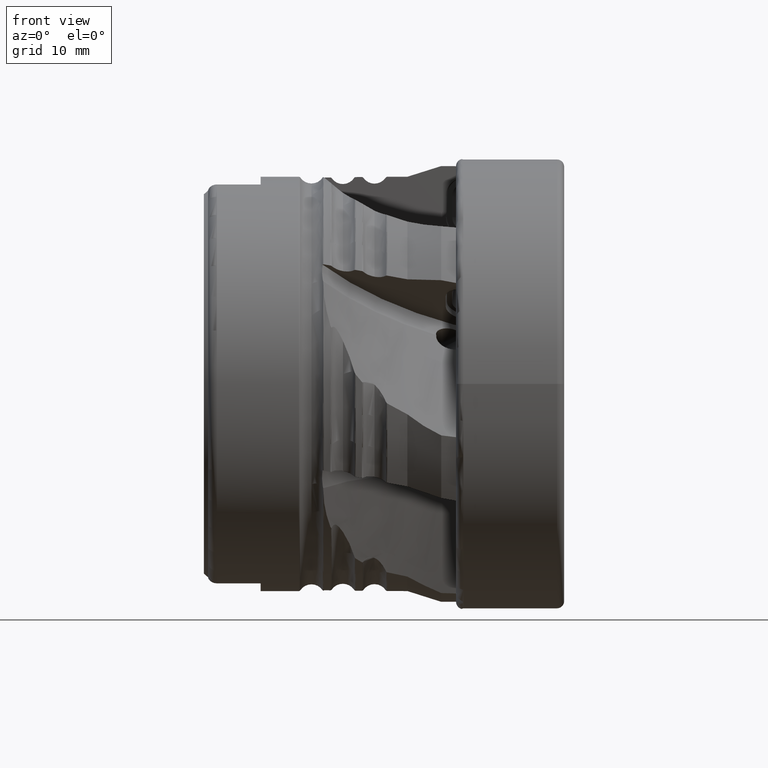
[diagram: clean part render]
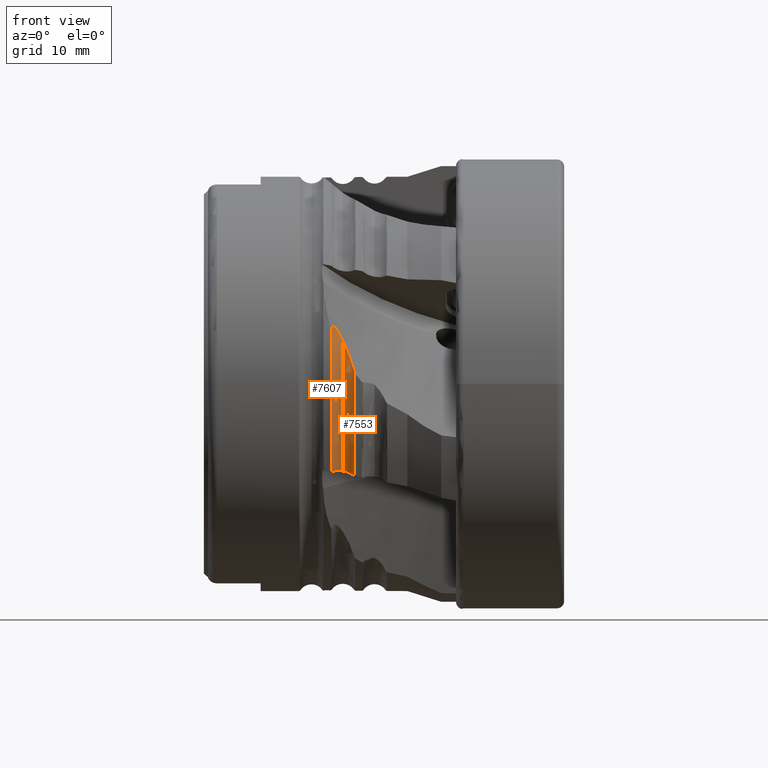
[diagram: same view with one multi-face feature highlighted, each face labeled with its STEP entity id]
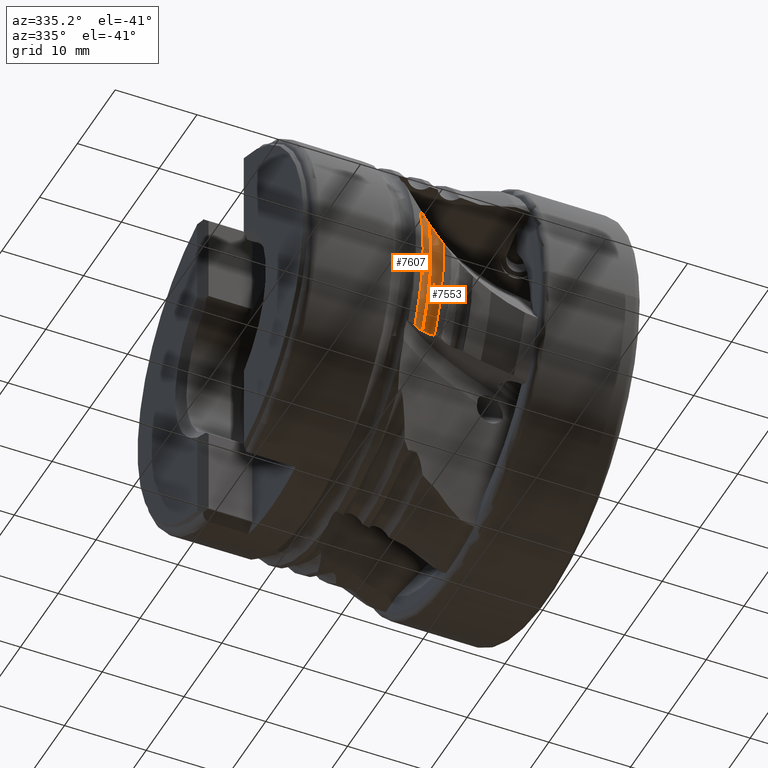
[diagram: same view with one multi-face feature highlighted, each face labeled with its STEP entity id]
A machine part, front view. The highlighted faces form ONE feature: a constant-radius fillet chain: 2 tangent blend faces with common blend radius 1.5 mm. The faces share edges in the B-rep.
A second angle (auxiliary view) of the same feature is appended — it is thin or edge-on in the first view.
Their STEP definitions:
[1] entity #7607 (Torus):
#121 = EDGE_CURVE ( 'NONE', #2690, #4865, #5511, .T. ) ;
#410 = EDGE_CURVE ( 'NONE', #12464, #2690, #1719, .T. ) ;
#578 = EDGE_CURVE ( 'NONE', #12480, #4865, #11460, .T. ) ;
#956 = CARTESIAN_POINT ( 'NONE',  ( -25.19392989822397400, -22.04118464057581100, 6.255808627009084700 ) ) ;
#1594 = CARTESIAN_POINT ( 'NONE',  ( -24.07098776238456800, -20.05111872187188700, -9.644470073474474600 ) ) ;
#1596 = CARTESIAN_POINT ( 'NONE',  ( -24.19256349179416100, -20.07521574707099500, -9.628543050588074700 ) ) ;
#1603 = CARTESIAN_POINT ( 'NONE',  ( -23.95000000000000600, -20.03991395728009600, -9.667696136350707900 ) ) ;
#1605 = CARTESIAN_POINT ( 'NONE',  ( -24.42692924046616900, -20.14706926265063900, -9.612505160867490500 ) ) ;
#1606 = CARTESIAN_POINT ( 'NONE',  ( -24.54272077775723600, -20.19587902241915200, -9.612265709285686900 ) ) ;
#1607 = CARTESIAN_POINT ( 'NONE',  ( -24.86612945412110800, -20.37386689524632600, -9.635649896473419000 ) ) ;
#1608 = CARTESIAN_POINT ( 'NONE',  ( -25.05472308990571100, -20.53673354133000500, -9.683392731828981000 ) ) ;
#1609 = CARTESIAN_POINT ( 'NONE',  ( -25.19392989822397800, -20.72891297589699600, -9.760180775754379900 ) ) ;
#1719 = B_SPLINE_CURVE_WITH_KNOTS ( 'NONE', 3,
 ( #10070, #10071, #10072, #10073, #10074, #10075, #10076, #10077, #10078, #10079, #10080, #10081, #10082, #10083, #10084, #10085 ),
 .UNSPECIFIED., .F., .F.,
 ( 4, 2, 2, 2, 2, 2, 2, 4 ),
 ( 0.003762105531508232400, 0.004345311457556701000, 0.004928517383605168800, 0.005220120346629399600, 0.005511723309653629600, 0.005657524791165742000, 0.005803326272677855300, 0.006094929235702079200 ),
 .UNSPECIFIED. ) ;
#1850 = TOROIDAL_SURFACE ( 'NONE', #4129, 23.75000000000000400, 1.500000000000000000 ) ;
#1851 = FACE_OUTER_BOUND ( 'NONE', #9400, .T. ) ;
#2069 = CIRCLE ( 'NONE', #8925, 22.25000000000000400 ) ;
#2690 = VERTEX_POINT ( 'NONE', #956 ) ;
#3353 = DIRECTION ( 'NONE',  ( 1.000000000000000000, -0.0000000000000000000, -0.0000000000000000000 ) ) ;
#3355 = CARTESIAN_POINT ( 'NONE',  ( -23.95000000000000600, 0.0000000000000000000, 0.0000000000000000000 ) ) ;
#3357 = DIRECTION ( 'NONE',  ( 0.0000000000000000000, 0.0000000000000000000, -1.000000000000000000 ) ) ;
#3659 = ORIENTED_EDGE ( 'NONE', *, *, #10996, .F. ) ;
#3927 = AXIS2_PLACEMENT_3D ( 'NONE', #9172, #9173, #9175 ) ;
#4129 = AXIS2_PLACEMENT_3D ( 'NONE', #3355, #3353, #3357 ) ;
#4818 = ORIENTED_EDGE ( 'NONE', *, *, #121, .T. ) ;
#4826 = ORIENTED_EDGE ( 'NONE', *, *, #578, .F. ) ;
#4836 = ORIENTED_EDGE ( 'NONE', *, *, #410, .T. ) ;
#4865 = VERTEX_POINT ( 'NONE', #7178 ) ;
#5511 = CIRCLE ( 'NONE', #3927, 22.91176470588235500 ) ;
#6598 = CARTESIAN_POINT ( 'NONE',  ( -23.95000000000000600, 0.0000000000000000000, 0.0000000000000000000 ) ) ;
#6599 = DIRECTION ( 'NONE',  ( 1.000000000000000000, -0.0000000000000000000, -0.0000000000000000000 ) ) ;
#6600 = DIRECTION ( 'NONE',  ( 0.0000000000000000000, 0.0000000000000000000, -1.000000000000000000 ) ) ;
#7178 = CARTESIAN_POINT ( 'NONE',  ( -25.19392989822397800, -20.72891297589699600, -9.760180775754379900 ) ) ;
#7607 = ADVANCED_FACE ( 'NONE', ( #1851 ), #1850, .F. ) ;
#8500 = CARTESIAN_POINT ( 'NONE',  ( -23.95000000000001000, -21.73612153553446500, 4.754315996279086900 ) ) ;
#8515 = CARTESIAN_POINT ( 'NONE',  ( -23.95000000000000600, -20.03991395728009600, -9.667696136350707900 ) ) ;
#8925 = AXIS2_PLACEMENT_3D ( 'NONE', #6598, #6599, #6600 ) ;
#9172 = CARTESIAN_POINT ( 'NONE',  ( -25.19392989822397400, 0.0000000000000000000, 0.0000000000000000000 ) ) ;
#9173 = DIRECTION ( 'NONE',  ( 1.000000000000000000, -0.0000000000000000000, -0.0000000000000000000 ) ) ;
#9175 = DIRECTION ( 'NONE',  ( 0.0000000000000000000, 0.0000000000000000000, -1.000000000000000000 ) ) ;
#9400 = EDGE_LOOP ( 'NONE', ( #3659, #4836, #4818, #4826 ) ) ;
#10070 = CARTESIAN_POINT ( 'NONE',  ( -23.95000000000001000, -21.73612153553446500, 4.754315996279086900 ) ) ;
#10071 = CARTESIAN_POINT ( 'NONE',  ( -24.02939445799147900, -21.69801082178720400, 4.928553280137490100 ) ) ;
#10072 = CARTESIAN_POINT ( 'NONE',  ( -24.11158507043085600, -21.66399180511700400, 5.102730118634168500 ) ) ;
#10073 = CARTESIAN_POINT ( 'NONE',  ( -24.28481041884302300, -21.60960726737307900, 5.448466908238229300 ) ) ;
#10074 = CARTESIAN_POINT ( 'NONE',  ( -24.37579789134852200, -21.58855892421529900, 5.620946653868401200 ) ) ;
#10075 = CARTESIAN_POINT ( 'NONE',  ( -24.52623406993835100, -21.57979352861363900, 5.871152685609286200 ) ) ;
#10076 = CARTESIAN_POINT ( 'NONE',  ( -24.57871323178211800, -21.58064200473197800, 5.953191455212534700 ) ) ;
#10077 = CARTESIAN_POINT ( 'NONE',  ( -24.69374213900951200, -21.59789130139900900, 6.111372543831548000 ) ) ;
#10078 = CARTESIAN_POINT ( 'NONE',  ( -24.75450631547776600, -21.61325206785364700, 6.186226746756325700 ) ) ;
#10079 = CARTESIAN_POINT ( 'NONE',  ( -24.85902008088336100, -21.66464641126733100, 6.278457617035897400 ) ) ;
#10080 = CARTESIAN_POINT ( 'NONE',  ( -24.89538502789814000, -21.68657352408373000, 6.304622113288121300 ) ) ;
#10081 = CARTESIAN_POINT ( 'NONE',  ( -24.96866014130712600, -21.74237047510571200, 6.340002204544514800 ) ) ;
#10082 = CARTESIAN_POINT ( 'NONE',  ( -25.00486988132630000, -21.77598171087383600, 6.348456964954219300 ) ) ;
#10083 = CARTESIAN_POINT ( 'NONE',  ( -25.10372388256471200, -21.88558901592410400, 6.344446785942911200 ) ) ;
#10084 = CARTESIAN_POINT ( 'NONE',  ( -25.15412092206124900, -21.96564234267447400, 6.305603415592170100 ) ) ;
#10085 = CARTESIAN_POINT ( 'NONE',  ( -25.19392989822397400, -22.04118464057581100, 6.255808627009084700 ) ) ;
#10996 = EDGE_CURVE ( 'NONE', #12464, #12480, #2069, .T. ) ;
#11460 = B_SPLINE_CURVE_WITH_KNOTS ( 'NONE', 3,
 ( #1603, #1594, #1596, #1605, #1606, #1607, #1608, #1609 ),
 .UNSPECIFIED., .F., .F.,
 ( 4, 2, 2, 4 ),
 ( 0.001492478864897733500, 0.001861073735053866300, 0.002229668605209999100, 0.002966858345522272900 ),
 .UNSPECIFIED. ) ;
#12464 = VERTEX_POINT ( 'NONE', #8500 ) ;
#12480 = VERTEX_POINT ( 'NONE', #8515 ) ;
[2] entity #7553 (Torus):
#2028 = CIRCLE ( 'NONE', #8905, 22.91176470588235500 ) ;
#2069 = CIRCLE ( 'NONE', #8925, 22.25000000000000400 ) ;
#2471 = B_SPLINE_CURVE_WITH_KNOTS ( 'NONE', 3,
 ( #4460, #4461, #4466, #4467, #4468, #4469, #4470, #4471 ),
 .UNSPECIFIED., .F., .F.,
 ( 4, 2, 2, 4 ),
 ( 8.435863521843254900E-007, 0.001881474558930211100, 0.002821790045219221400, 0.003762105531508232400 ),
 .UNSPECIFIED. ) ;
#2533 = B_SPLINE_CURVE_WITH_KNOTS ( 'NONE', 3,
 ( #8023, #8024, #8029, #8030, #8031, #8032, #8033, #8034, #8035, #8036 ),
 .UNSPECIFIED., .F., .F.,
 ( 4, 2, 2, 2, 4 ),
 ( 3.578053203621264000E-007, 0.0003733880702147049800, 0.0007464183351090478200, 0.001119448600003390600, 0.001492478864897733500 ),
 .UNSPECIFIED. ) ;
#2704 = ORIENTED_EDGE ( 'NONE', *, *, #10996, .T. ) ;
#2935 = ORIENTED_EDGE ( 'NONE', *, *, #10950, .F. ) ;
#3046 = ORIENTED_EDGE ( 'NONE', *, *, #11232, .F. ) ;
#3121 = ORIENTED_EDGE ( 'NONE', *, *, #11101, .T. ) ;
#4075 = AXIS2_PLACEMENT_3D ( 'NONE', #7389, #7391, #7395 ) ;
#4460 = CARTESIAN_POINT ( 'NONE',  ( -22.70607010177604200, -22.86942362709587700, 1.392273285725461200 ) ) ;
#4461 = CARTESIAN_POINT ( 'NONE',  ( -22.85471127564614900, -22.61447263784395300, 1.950116857730334900 ) ) ;
#4466 = CARTESIAN_POINT ( 'NONE',  ( -23.04376203348148200, -22.39897245473300600, 2.507861149181763100 ) ) ;
#4467 = CARTESIAN_POINT ( 'NONE',  ( -23.35853034928665700, -22.11635319227498500, 3.348060746976115400 ) ) ;
#4468 = CARTESIAN_POINT ( 'NONE',  ( -23.46904271425109200, -22.02921320323314400, 3.628692222897491200 ) ) ;
#4469 = CARTESIAN_POINT ( 'NONE',  ( -23.70090754512459700, -21.86986698503351100, 4.191492878407538000 ) ) ;
#4470 = CARTESIAN_POINT ( 'NONE',  ( -23.82199060393325100, -21.79756826083010800, 4.473389467615514400 ) ) ;
#4471 = CARTESIAN_POINT ( 'NONE',  ( -23.95000000000001000, -21.73612153553446500, 4.754315996279086900 ) ) ;
#5935 = FACE_OUTER_BOUND ( 'NONE', #12655, .T. ) ;
#5938 = TOROIDAL_SURFACE ( 'NONE', #4075, 23.75000000000000400, 1.500000000000000000 ) ;
#6432 = CARTESIAN_POINT ( 'NONE',  ( -22.70607010177603500, 0.0000000000000000000, 0.0000000000000000000 ) ) ;
#6433 = DIRECTION ( 'NONE',  ( 1.000000000000000000, -0.0000000000000000000, -0.0000000000000000000 ) ) ;
#6434 = DIRECTION ( 'NONE',  ( 0.0000000000000000000, 0.0000000000000000000, -1.000000000000000000 ) ) ;
#6598 = CARTESIAN_POINT ( 'NONE',  ( -23.95000000000000600, 0.0000000000000000000, 0.0000000000000000000 ) ) ;
#6599 = DIRECTION ( 'NONE',  ( 1.000000000000000000, -0.0000000000000000000, -0.0000000000000000000 ) ) ;
#6600 = DIRECTION ( 'NONE',  ( 0.0000000000000000000, 0.0000000000000000000, -1.000000000000000000 ) ) ;
#7389 = CARTESIAN_POINT ( 'NONE',  ( -23.95000000000000600, 0.0000000000000000000, 0.0000000000000000000 ) ) ;
#7391 = DIRECTION ( 'NONE',  ( 1.000000000000000000, -0.0000000000000000000, -0.0000000000000000000 ) ) ;
#7395 = DIRECTION ( 'NONE',  ( 0.0000000000000000000, 0.0000000000000000000, -1.000000000000000000 ) ) ;
#7553 = ADVANCED_FACE ( 'NONE', ( #5935 ), #5938, .F. ) ;
#8023 = CARTESIAN_POINT ( 'NONE',  ( -22.70607010177604200, -20.49752539953572800, -10.23720735518743300 ) ) ;
#8024 = CARTESIAN_POINT ( 'NONE',  ( -22.77558418213981600, -20.41463874835572400, -10.17229124619789500 ) ) ;
#8029 = CARTESIAN_POINT ( 'NONE',  ( -22.85606794167656400, -20.34230390571323000, -10.11077483768857000 ) ) ;
#8030 = CARTESIAN_POINT ( 'NONE',  ( -23.03783446700961000, -20.21764092512400200, -9.994188006049572700 ) ) ;
#8031 = CARTESIAN_POINT ( 'NONE',  ( -23.13992788980768400, -20.16543227851694900, -9.938987604290330700 ) ) ;
#8032 = CARTESIAN_POINT ( 'NONE',  ( -23.35465958373720200, -20.08677796136120400, -9.840872943046209200 ) ) ;
#8033 = CARTESIAN_POINT ( 'NONE',  ( -23.46979025412574400, -20.05922990909803600, -9.796710490761318700 ) ) ;
#8034 = CARTESIAN_POINT ( 'NONE',  ( -23.70703015989437600, -20.03019989521863000, -9.721722037400697400 ) ) ;
#8035 = CARTESIAN_POINT ( 'NONE',  ( -23.82755636145406100, -20.02857436293905400, -9.691201684280613900 ) ) ;
#8036 = CARTESIAN_POINT ( 'NONE',  ( -23.95000000000000600, -20.03991395728009600, -9.667696136350707900 ) ) ;
#8496 = CARTESIAN_POINT ( 'NONE',  ( -22.70607010177604200, -20.49752539953572800, -10.23720735518743300 ) ) ;
#8500 = CARTESIAN_POINT ( 'NONE',  ( -23.95000000000001000, -21.73612153553446500, 4.754315996279086900 ) ) ;
#8515 = CARTESIAN_POINT ( 'NONE',  ( -23.95000000000000600, -20.03991395728009600, -9.667696136350707900 ) ) ;
#8516 = CARTESIAN_POINT ( 'NONE',  ( -22.70607010177604200, -22.86942362709587700, 1.392273285725461200 ) ) ;
#8905 = AXIS2_PLACEMENT_3D ( 'NONE', #6432, #6433, #6434 ) ;
#8925 = AXIS2_PLACEMENT_3D ( 'NONE', #6598, #6599, #6600 ) ;
#10950 = EDGE_CURVE ( 'NONE', #12481, #12460, #2028, .T. ) ;
#10996 = EDGE_CURVE ( 'NONE', #12464, #12480, #2069, .T. ) ;
#11101 = EDGE_CURVE ( 'NONE', #12481, #12464, #2471, .T. ) ;
#11232 = EDGE_CURVE ( 'NONE', #12460, #12480, #2533, .T. ) ;
#12460 = VERTEX_POINT ( 'NONE', #8496 ) ;
#12464 = VERTEX_POINT ( 'NONE', #8500 ) ;
#12480 = VERTEX_POINT ( 'NONE', #8515 ) ;
#12481 = VERTEX_POINT ( 'NONE', #8516 ) ;
#12655 = EDGE_LOOP ( 'NONE', ( #3121, #2704, #3046, #2935 ) ) ;